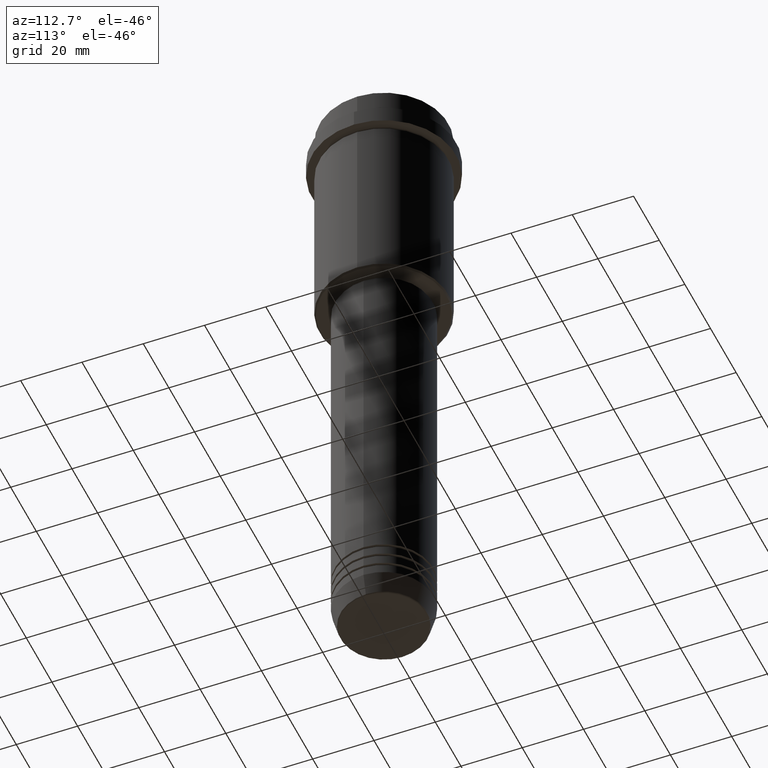
[diagram: clean part render]
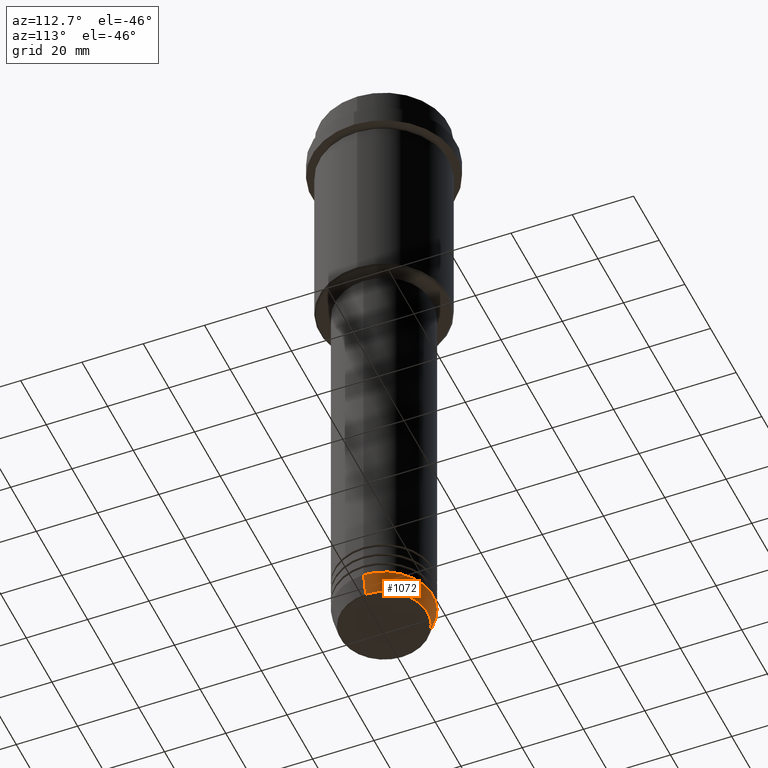
[diagram: same view with one face highlighted and labeled with its STEP entity id]
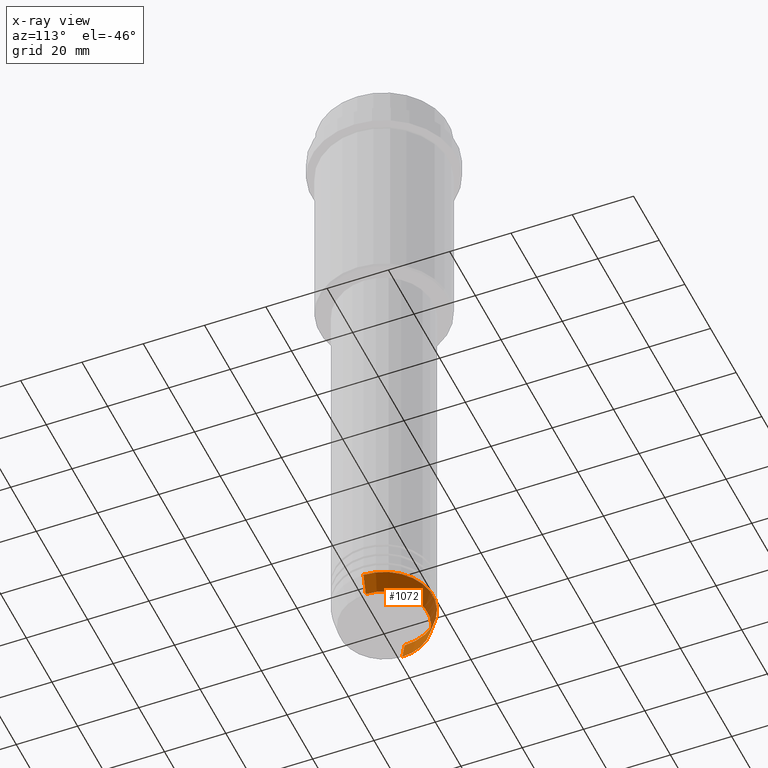
[diagram: x-ray of the same camera — body ghosted, the highlighted face saturated]
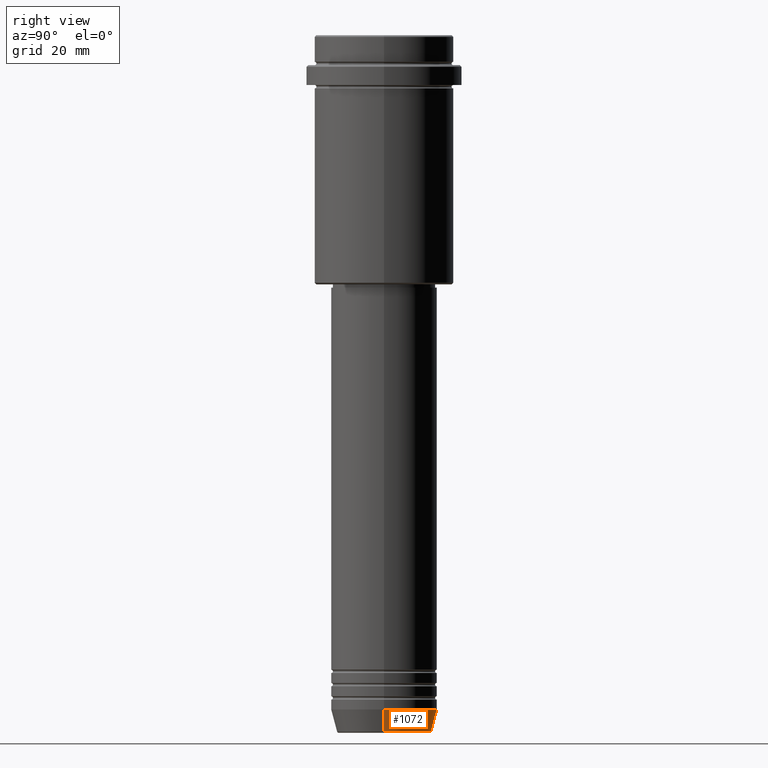
[diagram: same view with one face highlighted and labeled with its STEP entity id]
A machine part, auxiliary view. The second image highlights one B-rep face of the part: STEP entity #1072.
The next image is the same camera in x-ray: the body ghosted, the highlighted face saturated — about 0% of this face is hidden behind the body in this view.
A second angle (right view) of the same face is appended — the face is thin or edge-on in the first view.
In plain terms, the highlighted conical surface has half-angle 15 deg.
Its self-contained STEP definition (entity closure, byte-faithful):
#18 = DIRECTION ( 'NONE',  ( 1.000000000000000000, 0.000000000000000000, 0.000000000000000000 ) ) ;
#153 = CONICAL_SURFACE ( 'NONE', #1310, 16.00000000000000000, 0.2617993877991500740 ) ;
#156 = EDGE_LOOP ( 'NONE', ( #1142, #837, #388, #643 ) ) ;
#173 = VECTOR ( 'NONE', #1324, 1000.000000000000000 ) ;
#223 = VERTEX_POINT ( 'NONE', #1181 ) ;
#235 = FACE_OUTER_BOUND ( 'NONE', #156, .T. ) ;
#251 = CARTESIAN_POINT ( 'NONE',  ( 14.22365507213718239, 0.000000000000000000, -209.6294095225512706 ) ) ;
#268 = CARTESIAN_POINT ( 'NONE',  ( 0.000000000000000000, 0.000000000000000000, -209.6294095225512706 ) ) ;
#270 = VERTEX_POINT ( 'NONE', #842 ) ;
#275 = CARTESIAN_POINT ( 'NONE',  ( 16.00000000000000000, 0.000000000000000000, -203.0000000000000000 ) ) ;
#276 = DIRECTION ( 'NONE',  ( 1.000000000000000000, 0.000000000000000000, 0.000000000000000000 ) ) ;
#301 = DIRECTION ( 'NONE',  ( -0.000000000000000000, -0.000000000000000000, 1.000000000000000000 ) ) ;
#388 = ORIENTED_EDGE ( 'NONE', *, *, #1349, .F. ) ;
#583 = AXIS2_PLACEMENT_3D ( 'NONE', #811, #1248, #276 ) ;
#643 = ORIENTED_EDGE ( 'NONE', *, *, #758, .F. ) ;
#758 = EDGE_CURVE ( 'NONE', #1043, #1120, #1371, .T. ) ;
#773 = LINE ( 'NONE', #1104, #173 ) ;
#792 = DIRECTION ( 'NONE',  ( -0.000000000000000000, -0.000000000000000000, 1.000000000000000000 ) ) ;
#806 = DIRECTION ( 'NONE',  ( 1.000000000000000000, 0.000000000000000000, 0.000000000000000000 ) ) ;
#811 = CARTESIAN_POINT ( 'NONE',  ( 0.000000000000000000, 0.000000000000000000, -203.0000000000000000 ) ) ;
#822 = DIRECTION ( 'NONE',  ( 0.2588190451025213501, 0.000000000000000000, 0.9659258262890680902 ) ) ;
#837 = ORIENTED_EDGE ( 'NONE', *, *, #1179, .T. ) ;
#842 = CARTESIAN_POINT ( 'NONE',  ( -14.22365507213718239, 1.850665122131322942E-15, -209.6294095225512706 ) ) ;
#1043 = VERTEX_POINT ( 'NONE', #251 ) ;
#1072 = ADVANCED_FACE ( 'NONE', ( #235 ), #153, .T. ) ;
#1085 = CIRCLE ( 'NONE', #1127, 14.22365507213718239 ) ;
#1104 = CARTESIAN_POINT ( 'NONE',  ( -16.00000000000000000, 1.959434878635765131E-15, -203.0000000000000000 ) ) ;
#1109 = CARTESIAN_POINT ( 'NONE',  ( 0.000000000000000000, 0.000000000000000000, -203.0000000000000000 ) ) ;
#1120 = VERTEX_POINT ( 'NONE', #1338 ) ;
#1127 = AXIS2_PLACEMENT_3D ( 'NONE', #268, #301, #806 ) ;
#1142 = ORIENTED_EDGE ( 'NONE', *, *, #1246, .T. ) ;
#1179 = EDGE_CURVE ( 'NONE', #270, #223, #773, .T. ) ;
#1181 = CARTESIAN_POINT ( 'NONE',  ( -16.00000000000000000, 1.959434878635765131E-15, -203.0000000000000000 ) ) ;
#1216 = CIRCLE ( 'NONE', #583, 16.00000000000000000 ) ;
#1246 = EDGE_CURVE ( 'NONE', #1043, #270, #1085, .T. ) ;
#1248 = DIRECTION ( 'NONE',  ( -0.000000000000000000, -0.000000000000000000, 1.000000000000000000 ) ) ;
#1291 = VECTOR ( 'NONE', #822, 1000.000000000000000 ) ;
#1310 = AXIS2_PLACEMENT_3D ( 'NONE', #1109, #792, #18 ) ;
#1324 = DIRECTION ( 'NONE',  ( -0.2588190451025213501, 3.169619151431772337E-17, 0.9659258262890680902 ) ) ;
#1338 = CARTESIAN_POINT ( 'NONE',  ( 16.00000000000000000, 0.000000000000000000, -203.0000000000000000 ) ) ;
#1349 = EDGE_CURVE ( 'NONE', #1120, #223, #1216, .T. ) ;
#1371 = LINE ( 'NONE', #275, #1291 ) ;